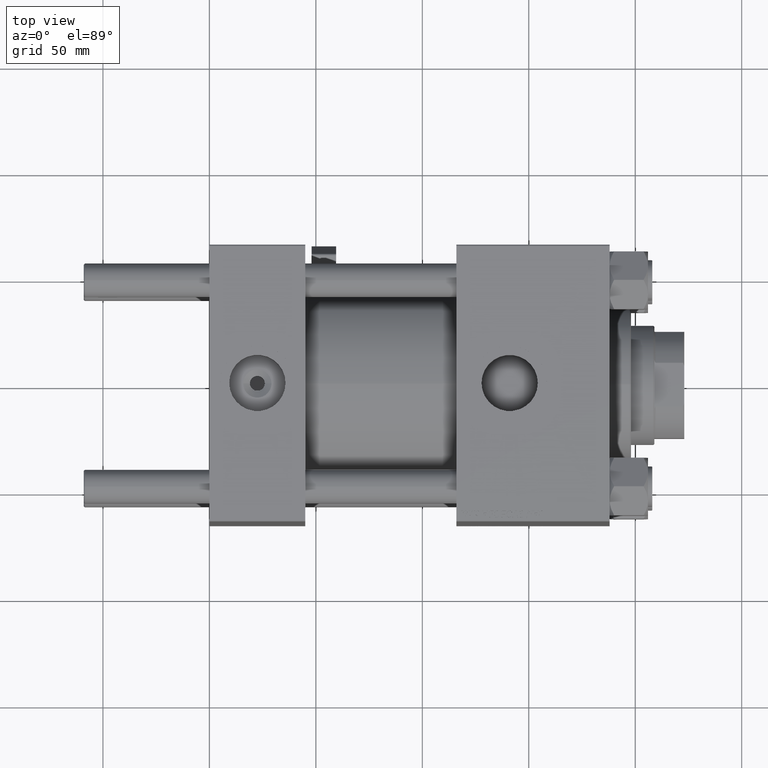
[diagram: clean part render]
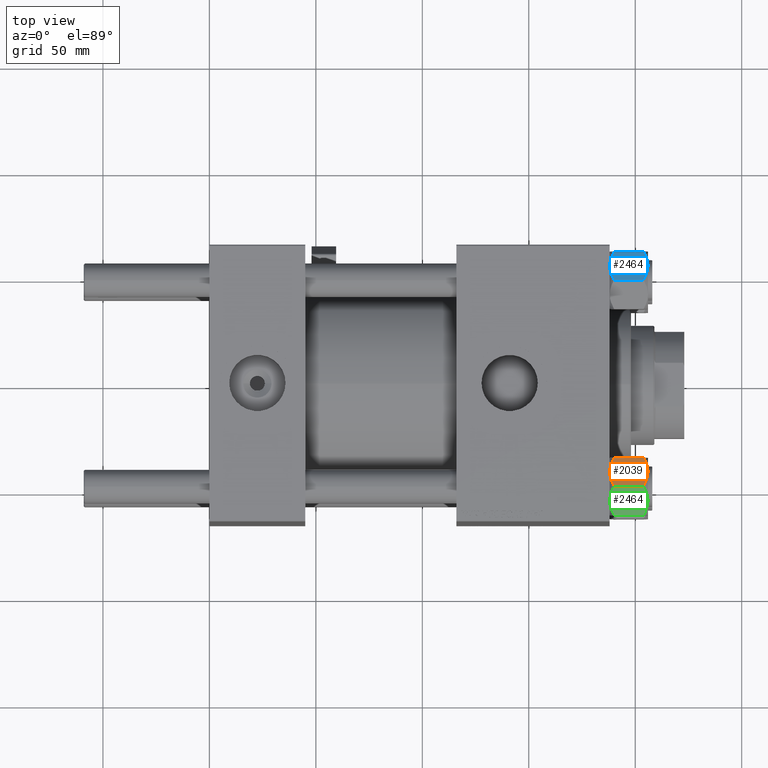
[diagram: same view with three faces highlighted in distinct colors, each labeled with its STEP entity id]
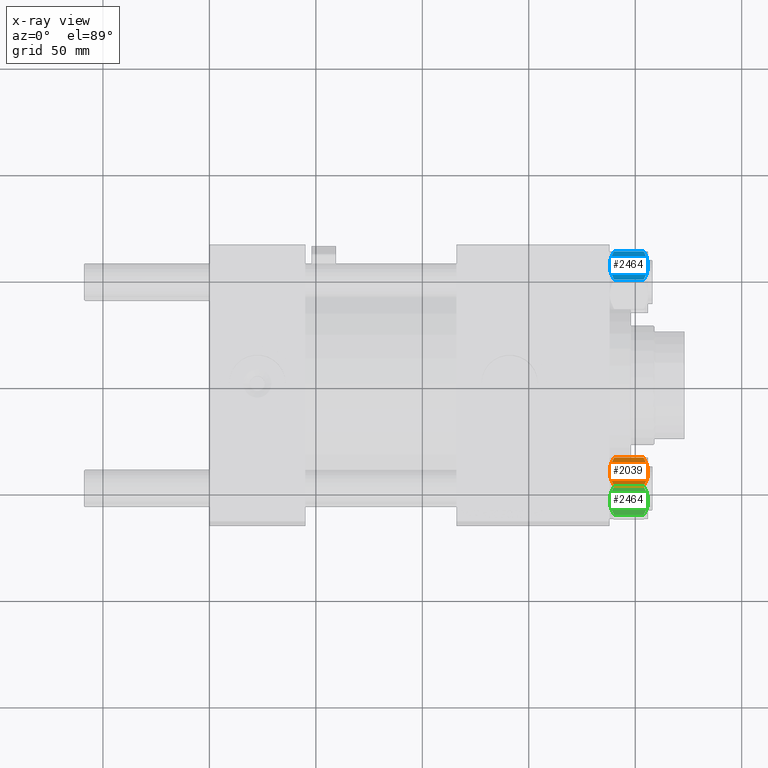
[diagram: x-ray of the same camera — body ghosted, the three highlighted faces saturated]
A machine part, top view with three faces highlighted in distinct colors.
The next image is the same camera in x-ray (body ghosted, the three faces saturated) — at least one of them is partly hidden behind the body in this view.
Their STEP definitions:

[orange] entity #2039 — the highlighted planar face has unit normal (-0, -0.5, -0.866).
#600 = B_SPLINE_CURVE_WITH_KNOTS ( 'NONE', 3,
 ( #18380, #14409, #35099, #10430, #14931, #43334, #51259, #31114 ),
 .UNSPECIFIED., .F., .F.,
 ( 4, 2, 2, 4 ),
 ( 4.472842642033888912E-07, 0.003945636373369316996, 0.005918230917921872211, 0.007890825462474429161 ),
 .UNSPECIFIED. ) ;
#610 = EDGE_LOOP ( 'NONE', ( #34173, #19557, #16539, #37521, #38615, #34026, #46822, #30363, #36338, #23504 ) ) ;
#656 = EDGE_CURVE ( 'NONE', #17169, #46879, #48027, .T. ) ;
#879 = CARTESIAN_POINT ( 'NONE',  ( 14.30591678195075822, 2.276058899034911320, -17.05261278537718539 ) ) ;
#2039 = ADVANCED_FACE ( 'NONE', ( #46954 ), #26789, .F. ) ;
#2352 = CARTESIAN_POINT ( 'NONE',  ( 11.05297796109638142, 7.910314210667887203, -1.616138863361205047E-15 ) ) ;
#2909 = DIRECTION ( 'NONE',  ( -0.8660254037844383745, -0.5000000000000004441, 0.000000000000000000 ) ) ;
#3208 = CARTESIAN_POINT ( 'NONE',  ( 7.809999999999995168, 13.52731680711294082, -16.00000000000000000 ) ) ;
#4066 = CARTESIAN_POINT ( 'NONE',  ( 11.04378428799594580, 7.926238119586004771, -17.94910618364698252 ) ) ;
#4203 = DIRECTION ( 'NONE',  ( 0.5000000000000004441, -0.8660254037844383745, 0.000000000000000000 ) ) ;
#5157 = VECTOR ( 'NONE', #19400, 1000.000000000000114 ) ;
#5831 = VECTOR ( 'NONE', #42952, 1000.000000000000114 ) ;
#5935 = EDGE_CURVE ( 'NONE', #16852, #42766, #26755, .T. ) ;
#5984 = EDGE_CURVE ( 'NONE', #39255, #40384, #43949, .T. ) ;
#6017 = VERTEX_POINT ( 'NONE', #34179 ) ;
#7444 = VECTOR ( 'NONE', #4203, 1000.000000000000114 ) ;
#7813 = CARTESIAN_POINT ( 'NONE',  ( 15.62000000000000455, 5.009671660077301770E-15, -18.00000000000000000 ) ) ;
#8564 = CARTESIAN_POINT ( 'NONE',  ( 11.38181071908714337, 7.340759166634874155, -17.99999999999999289 ) ) ;
#8810 = CARTESIAN_POINT ( 'NONE',  ( 7.903528262322678799, 13.36532110482642466, -16.00000000000000000 ) ) ;
#10430 = CARTESIAN_POINT ( 'NONE',  ( 13.36540581434586983, 3.905071680002333512, -0.3836066851120609744 ) ) ;
#10909 = EDGE_CURVE ( 'NONE', #34318, #6017, #51744, .T. ) ;
#11838 = VERTEX_POINT ( 'NONE', #14993 ) ;
#12217 = DIRECTION ( 'NONE',  ( -0.5000000000000004441, 0.8660254037844383745, 0.000000000000000000 ) ) ;
#12282 = CARTESIAN_POINT ( 'NONE',  ( 8.502393313253756801, 12.32805640973648131, -16.58801072835992585 ) ) ;
#12987 = LINE ( 'NONE', #32900, #22759 ) ;
#13071 = CARTESIAN_POINT ( 'NONE',  ( 15.52647173767732447, 0.1619957022865230467, -16.00000000000000000 ) ) ;
#14123 = CARTESIAN_POINT ( 'NONE',  ( 13.02784502466562166, 4.489744118371596038, -17.80281335400754017 ) ) ;
#14409 = CARTESIAN_POINT ( 'NONE',  ( 14.92760668674625180, 1.199260397376467502, -1.411989271640067489 ) ) ;
#14822 = CARTESIAN_POINT ( 'NONE',  ( 9.439480280627261521, 10.70497417113492489, -0.7317196846281144307 ) ) ;
#14931 = CARTESIAN_POINT ( 'NONE',  ( 13.04337073483127973, 4.462852799541093596, -0.2430846701013001376 ) ) ;
#14993 = CARTESIAN_POINT ( 'NONE',  ( 7.809999999999994280, 13.52731680711294082, -1.999999999999998224 ) ) ;
#15702 = CARTESIAN_POINT ( 'NONE',  ( 7.903528262322678799, 13.36532110482642466, -16.00000000000000000 ) ) ;
#16539 = ORIENTED_EDGE ( 'NONE', *, *, #22896, .F. ) ;
#16643 = CARTESIAN_POINT ( 'NONE',  ( 7.809999999999995168, 13.52731680711294082, -16.00000000000000000 ) ) ;
#16852 = VERTEX_POINT ( 'NONE', #48645 ) ;
#17071 = CARTESIAN_POINT ( 'NONE',  ( 14.92394044919337581, 1.205610507090648209, -16.56553707812498999 ) ) ;
#17116 = EDGE_CURVE ( 'NONE', #42766, #39255, #600, .T. ) ;
#17169 = VERTEX_POINT ( 'NONE', #15702 ) ;
#18001 = CARTESIAN_POINT ( 'NONE',  ( 7.809999999999995168, 13.52731680711294082, -1.999999999999998224 ) ) ;
#18380 = CARTESIAN_POINT ( 'NONE',  ( 15.52647173767732447, 0.1619957022865230467, -2.000000000000000000 ) ) ;
#18812 = CARTESIAN_POINT ( 'NONE',  ( 11.71499999999999808, 6.763658403556471299, 0.000000000000000000 ) ) ;
#19400 = DIRECTION ( 'NONE',  ( 0.5000000000000004441, -0.8660254037844383745, 0.000000000000000000 ) ) ;
#19557 = ORIENTED_EDGE ( 'NONE', *, *, #47670, .T. ) ;
#20306 = B_SPLINE_CURVE_WITH_KNOTS ( 'NONE', 3,
 ( #45974, #50451, #14123, #25282, #879, #17071, #41477, #13071 ),
 .UNSPECIFIED., .F., .F.,
 ( 4, 2, 2, 4 ),
 ( 0.007890825462474411814, 0.01181022244528551722, 0.01376992093669107166, 0.01572961942809662783 ),
 .UNSPECIFIED. ) ;
#21583 = CARTESIAN_POINT ( 'NONE',  ( 11.71499999999999808, 6.763658403556471299, -18.00000000000000000 ) ) ;
#22164 = EDGE_CURVE ( 'NONE', #28452, #17169, #32832, .T. ) ;
#22510 = CARTESIAN_POINT ( 'NONE',  ( 7.903528262322678799, 13.36532110482642466, -2.000000000000000000 ) ) ;
#22759 = VECTOR ( 'NONE', #12217, 1000.000000000000114 ) ;
#22896 = EDGE_CURVE ( 'NONE', #40384, #11838, #12987, .T. ) ;
#23504 = ORIENTED_EDGE ( 'NONE', *, *, #656, .F. ) ;
#24009 = DIRECTION ( 'NONE',  ( -0.000000000000000000, -0.000000000000000000, 1.000000000000000000 ) ) ;
#24799 = CARTESIAN_POINT ( 'NONE',  ( 7.809999999999995168, 13.52731680711294082, -18.00000000000000000 ) ) ;
#25040 = LINE ( 'NONE', #24799, #43011 ) ;
#25282 = CARTESIAN_POINT ( 'NONE',  ( 13.99051971937273819, 2.822342635978020819, -17.26828031537188934 ) ) ;
#26755 = LINE ( 'NONE', #18001, #5831 ) ;
#26789 = PLANE ( 'NONE',  #29389 ) ;
#27062 = DIRECTION ( 'NONE',  ( 0.5000000000000004441, -0.8660254037844383745, 0.000000000000000000 ) ) ;
#28452 = VERTEX_POINT ( 'NONE', #34725 ) ;
#28748 = LINE ( 'NONE', #7813, #37416 ) ;
#29389 = AXIS2_PLACEMENT_3D ( 'NONE', #35028, #2909, #27062 ) ;
#29479 = CARTESIAN_POINT ( 'NONE',  ( 11.71499999999999808, 6.763658403556471299, 0.000000000000000000 ) ) ;
#30363 = ORIENTED_EDGE ( 'NONE', *, *, #10909, .F. ) ;
#30740 = CARTESIAN_POINT ( 'NONE',  ( 9.124083218049234389, 11.25125790807803483, -0.9473872146228138336 ) ) ;
#31114 = CARTESIAN_POINT ( 'NONE',  ( 11.71499999999999808, 6.763658403556471299, 0.000000000000000000 ) ) ;
#32126 = CARTESIAN_POINT ( 'NONE',  ( 15.52647173767732447, 0.1619957022865230467, -16.00000000000000000 ) ) ;
#32197 = CARTESIAN_POINT ( 'NONE',  ( 10.38662926516871998, 9.064464007571849891, -17.75691532989869614 ) ) ;
#32832 = LINE ( 'NONE', #16643, #7444 ) ;
#32900 = CARTESIAN_POINT ( 'NONE',  ( 7.809999999999995168, 13.52731680711294082, -1.999999999999998224 ) ) ;
#34026 = ORIENTED_EDGE ( 'NONE', *, *, #5935, .F. ) ;
#34173 = ORIENTED_EDGE ( 'NONE', *, *, #22164, .F. ) ;
#34179 = CARTESIAN_POINT ( 'NONE',  ( 15.62000000000000455, 5.009671660077301770E-15, -16.00000000000000000 ) ) ;
#34318 = VERTEX_POINT ( 'NONE', #32126 ) ;
#34725 = CARTESIAN_POINT ( 'NONE',  ( 7.809999999999994280, 13.52731680711294082, -16.00000000000000000 ) ) ;
#34996 = CARTESIAN_POINT ( 'NONE',  ( 10.40215497533437450, 9.037572688741349225, -0.1971866459924571102 ) ) ;
#35028 = CARTESIAN_POINT ( 'NONE',  ( 7.809999999999995168, 13.52731680711294082, -18.00000000000000000 ) ) ;
#35063 = EDGE_CURVE ( 'NONE', #6017, #16852, #28748, .T. ) ;
#35099 = CARTESIAN_POINT ( 'NONE',  ( 14.31545111198821196, 2.259544954993908394, -0.9142282604026947812 ) ) ;
#35231 = EDGE_CURVE ( 'NONE', #46879, #34318, #20306, .T. ) ;
#36245 = CARTESIAN_POINT ( 'NONE',  ( 7.903528262322678799, 13.36532110482642466, -2.000000000000000000 ) ) ;
#36338 = ORIENTED_EDGE ( 'NONE', *, *, #35231, .F. ) ;
#37416 = VECTOR ( 'NONE', #24009, 1000.000000000000000 ) ;
#37521 = ORIENTED_EDGE ( 'NONE', *, *, #5984, .F. ) ;
#38615 = ORIENTED_EDGE ( 'NONE', *, *, #17116, .F. ) ;
#39255 = VERTEX_POINT ( 'NONE', #29479 ) ;
#39931 = CARTESIAN_POINT ( 'NONE',  ( 15.52647173767732447, 0.1619957022865230467, -2.000000000000000000 ) ) ;
#40384 = VERTEX_POINT ( 'NONE', #36245 ) ;
#41477 = CARTESIAN_POINT ( 'NONE',  ( 15.22736220980735489, 0.6800686015852402955, -16.29368822085855228 ) ) ;
#41770 = DIRECTION ( 'NONE',  ( -0.000000000000000000, -0.000000000000000000, 1.000000000000000000 ) ) ;
#42152 = CARTESIAN_POINT ( 'NONE',  ( 8.202637790192643052, 12.84724820552770197, -1.706311779141444163 ) ) ;
#42766 = VERTEX_POINT ( 'NONE', #39931 ) ;
#42952 = DIRECTION ( 'NONE',  ( -0.5000000000000004441, 0.8660254037844383745, 0.000000000000000000 ) ) ;
#43011 = VECTOR ( 'NONE', #41770, 1000.000000000000000 ) ;
#43334 = CARTESIAN_POINT ( 'NONE',  ( 12.38621571200405391, 5.601078687526936939, -0.05089381635301767209 ) ) ;
#43949 = B_SPLINE_CURVE_WITH_KNOTS ( 'NONE', 3,
 ( #18812, #2352, #34996, #14822, #30740, #46659, #42152, #22510 ),
 .UNSPECIFIED., .F., .F.,
 ( 4, 2, 2, 4 ),
 ( 0.007890825462474429161, 0.01181022244528553977, 0.01376992093669109421, 0.01572961942809664865 ),
 .UNSPECIFIED. ) ;
#44410 = CARTESIAN_POINT ( 'NONE',  ( 11.71499999999999808, 6.763658403556471299, -18.00000000000000000 ) ) ;
#44919 = CARTESIAN_POINT ( 'NONE',  ( 9.114548888011784200, 11.26777185211903642, -17.08577173959729834 ) ) ;
#45974 = CARTESIAN_POINT ( 'NONE',  ( 11.71499999999999808, 6.763658403556471299, -18.00000000000000000 ) ) ;
#46659 = CARTESIAN_POINT ( 'NONE',  ( 8.506059550806616798, 12.32170630002229927, -1.434462921875002239 ) ) ;
#46822 = ORIENTED_EDGE ( 'NONE', *, *, #35063, .F. ) ;
#46879 = VERTEX_POINT ( 'NONE', #21583 ) ;
#46954 = FACE_OUTER_BOUND ( 'NONE', #610, .T. ) ;
#47670 = EDGE_CURVE ( 'NONE', #28452, #11838, #25040, .T. ) ;
#48027 = B_SPLINE_CURVE_WITH_KNOTS ( 'NONE', 3,
 ( #8810, #12282, #44919, #49393, #32197, #4066, #8564, #44410 ),
 .UNSPECIFIED., .F., .F.,
 ( 4, 2, 2, 4 ),
 ( 4.472842641837737786E-07, 0.003945636373369299649, 0.005918230917921855731, 0.007890825462474411814 ),
 .UNSPECIFIED. ) ;
#48645 = CARTESIAN_POINT ( 'NONE',  ( 15.62000000000000455, 5.009671660077301770E-15, -1.999999999999998224 ) ) ;
#49393 = CARTESIAN_POINT ( 'NONE',  ( 10.06459418565412456, 9.622245127110609531, -17.61639331488793303 ) ) ;
#50451 = CARTESIAN_POINT ( 'NONE',  ( 12.37702203890362362, 5.617002596445060725, -17.99999999999999645 ) ) ;
#51259 = CARTESIAN_POINT ( 'NONE',  ( 12.04818928091285635, 6.186557640478070219, -1.789310043688750938E-15 ) ) ;
#51744 = LINE ( 'NONE', #3208, #5157 ) ;

[blue] entity #2464 — the highlighted planar face has unit normal (-0, -0.5, -0.866).
#2464 = ADVANCED_FACE ( 'NONE', ( #19813 ), #52416, .F. ) ;
#2522 = ORIENTED_EDGE ( 'NONE', *, *, #36769, .F. ) ;
#2688 = CARTESIAN_POINT ( 'NONE',  ( -2.644243758052992721, 13.52731680711293549, -0.2408281198024026237 ) ) ;
#3845 = CARTESIAN_POINT ( 'NONE',  ( -4.506943796211480446E-15, 13.52731680711293905, -18.00000000000000000 ) ) ;
#3924 = CARTESIAN_POINT ( 'NONE',  ( 6.427364677720460051, 13.52731680711294082, -1.438506937155139553 ) ) ;
#4380 = LINE ( 'NONE', #36216, #5004 ) ;
#5004 = VECTOR ( 'NONE', #31972, 1000.000000000000000 ) ;
#5449 = CARTESIAN_POINT ( 'NONE',  ( -7.810000000000002274, 13.52731680711293549, -18.00000000000000000 ) ) ;
#6056 = CARTESIAN_POINT ( 'NONE',  ( 3.287826776903146619, 13.52731680711294082, -17.61954155462465366 ) ) ;
#6343 = EDGE_CURVE ( 'NONE', #38995, #50692, #4380, .T. ) ;
#7431 = CARTESIAN_POINT ( 'NONE',  ( -0.3330234424833884432, 13.52731680711294082, -4.372948762358202269E-15 ) ) ;
#7479 = ORIENTED_EDGE ( 'NONE', *, *, #44741, .F. ) ;
#7971 = EDGE_CURVE ( 'NONE', #37179, #44235, #39894, .T. ) ;
#8222 = VERTEX_POINT ( 'NONE', #52399 ) ;
#8432 = CARTESIAN_POINT ( 'NONE',  ( 2.638177715023098724, 13.52731680711293905, -0.2001540676698886079 ) ) ;
#8517 = EDGE_LOOP ( 'NONE', ( #9655, #37433, #19422, #7479, #39699, #25266, #16940, #24463, #48665, #2522 ) ) ;
#9171 = DIRECTION ( 'NONE',  ( -0.000000000000000000, -0.000000000000000000, 1.000000000000000000 ) ) ;
#9655 = ORIENTED_EDGE ( 'NONE', *, *, #6343, .F. ) ;
#10158 = CARTESIAN_POINT ( 'NONE',  ( -7.810000000000002274, 13.52731680711293549, -1.999999999999998224 ) ) ;
#10568 = CARTESIAN_POINT ( 'NONE',  ( -4.506943796211480446E-15, 13.52731680711293905, -18.00000000000000000 ) ) ;
#10900 = CARTESIAN_POINT ( 'NONE',  ( -5.184073258379398474, 13.52731680711293372, -0.9481437906500842505 ) ) ;
#11838 = VERTEX_POINT ( 'NONE', #14993 ) ;
#12622 = DIRECTION ( 'NONE',  ( 3.331735229148797044E-16, -1.000000000000000000, 0.000000000000000000 ) ) ;
#13212 = CARTESIAN_POINT ( 'NONE',  ( -7.030888348548057998, 13.52731680711293727, -16.29066211644969897 ) ) ;
#14562 = CARTESIAN_POINT ( 'NONE',  ( -1.335584685993417065, 13.52731680711293549, -17.99999999999999289 ) ) ;
#14993 = CARTESIAN_POINT ( 'NONE',  ( 7.809999999999994280, 13.52731680711294082, -1.999999999999998224 ) ) ;
#15405 = CARTESIAN_POINT ( 'NONE',  ( -1.663410456966178064, 13.52731680711294082, -0.09804949135699474183 ) ) ;
#16094 = DIRECTION ( 'NONE',  ( 1.000000000000000000, 3.331735229148797044E-16, 0.000000000000000000 ) ) ;
#16940 = ORIENTED_EDGE ( 'NONE', *, *, #47670, .F. ) ;
#17073 = EDGE_CURVE ( 'NONE', #11838, #37179, #46503, .T. ) ;
#17610 = LINE ( 'NONE', #38037, #22639 ) ;
#17998 = CARTESIAN_POINT ( 'NONE',  ( 2.644243758052981175, 13.52731680711294260, -17.75917188019758797 ) ) ;
#18257 = CARTESIAN_POINT ( 'NONE',  ( 6.422751913021809145, 13.52731680711294260, -16.56349088907410660 ) ) ;
#18680 = DIRECTION ( 'NONE',  ( -1.000000000000000000, -3.331735229148797044E-16, 0.000000000000000000 ) ) ;
#19059 = CARTESIAN_POINT ( 'NONE',  ( 7.622943475354630571, 13.52731680711294082, -16.00000000000000000 ) ) ;
#19183 = CARTESIAN_POINT ( 'NONE',  ( -7.810000000000002274, 13.52731680711293549, -1.999999999999998224 ) ) ;
#19422 = ORIENTED_EDGE ( 'NONE', *, *, #20183, .F. ) ;
#19546 = EDGE_CURVE ( 'NONE', #32210, #28452, #48117, .T. ) ;
#19813 = FACE_OUTER_BOUND ( 'NONE', #8517, .T. ) ;
#20116 = CARTESIAN_POINT ( 'NONE',  ( 4.553769687922292420, 13.52731680711293905, -0.7327291995145180925 ) ) ;
#20183 = EDGE_CURVE ( 'NONE', #22701, #49143, #17610, .T. ) ;
#21174 = B_SPLINE_CURVE_WITH_KNOTS ( 'NONE', 3,
 ( #26560, #7431, #43788, #35054, #15405, #2688, #51209, #42750, #10900, #23354, #34788, #39550 ),
 .UNSPECIFIED., .F., .F.,
 ( 4, 2, 2, 2, 2, 4 ),
 ( 0.02774433486126545376, 0.02873404020403548878, 0.02972374554680552727, 0.03170315623234559732, 0.03368256691788567431, 0.03566197760342574435 ),
 .UNSPECIFIED. ) ;
#21981 = CARTESIAN_POINT ( 'NONE',  ( 1.333889873825125472, 13.52731680711293727, -17.93843358996559800 ) ) ;
#22250 = CARTESIAN_POINT ( 'NONE',  ( 5.184073258379390481, 13.52731680711294082, -17.05185620934991064 ) ) ;
#22268 = B_SPLINE_CURVE_WITH_KNOTS ( 'NONE', 3,
 ( #10568, #22784, #39240, #21981, #38976, #17998, #6056, #34438, #22250, #18257, #46377, #19059 ),
 .UNSPECIFIED., .F., .F.,
 ( 4, 2, 2, 2, 2, 4 ),
 ( 0.02774433486126545029, 0.02873404020403548531, 0.02972374554680552380, 0.03170315623234559732, 0.03368256691788566737, 0.03566197760342574435 ),
 .UNSPECIFIED. ) ;
#22639 = VECTOR ( 'NONE', #18680, 1000.000000000000000 ) ;
#22701 = VERTEX_POINT ( 'NONE', #42771 ) ;
#22784 = CARTESIAN_POINT ( 'NONE',  ( 0.3330234424833778406, 13.52731680711293905, -17.99999999999999645 ) ) ;
#22900 = DIRECTION ( 'NONE',  ( -1.000000000000000000, -3.331735229148797044E-16, 0.000000000000000000 ) ) ;
#23068 = CARTESIAN_POINT ( 'NONE',  ( -7.622943475354639453, 13.52731680711293727, -16.00000000000000000 ) ) ;
#23354 = CARTESIAN_POINT ( 'NONE',  ( -6.422751913021819803, 13.52731680711293905, -1.436509110925896504 ) ) ;
#24463 = ORIENTED_EDGE ( 'NONE', *, *, #19546, .F. ) ;
#24799 = CARTESIAN_POINT ( 'NONE',  ( 7.809999999999995168, 13.52731680711294082, -18.00000000000000000 ) ) ;
#25040 = LINE ( 'NONE', #24799, #43011 ) ;
#25114 = CARTESIAN_POINT ( 'NONE',  ( 7.030888348548049116, 13.52731680711294260, -1.709337883550296810 ) ) ;
#25266 = ORIENTED_EDGE ( 'NONE', *, *, #17073, .F. ) ;
#25428 = CARTESIAN_POINT ( 'NONE',  ( -5.189513245496327976, 13.52731680711293905, -17.04988915682674389 ) ) ;
#26560 = CARTESIAN_POINT ( 'NONE',  ( -4.506943796211480446E-15, 13.52731680711293905, 0.000000000000000000 ) ) ;
#28329 = CARTESIAN_POINT ( 'NONE',  ( 5.189513245496318206, 13.52731680711294260, -0.9501108431732598891 ) ) ;
#28452 = VERTEX_POINT ( 'NONE', #34725 ) ;
#28667 = B_SPLINE_CURVE_WITH_KNOTS ( 'NONE', 3,
 ( #49552, #13212, #45595, #25428, #37629, #34440, #14562, #3845 ),
 .UNSPECIFIED., .F., .F.,
 ( 4, 2, 2, 4 ),
 ( 0.01980594295952729442, 0.02179054093496183425, 0.02377513891039637409, 0.02774433486126545029 ),
 .UNSPECIFIED. ) ;
#28732 = DIRECTION ( 'NONE',  ( 1.000000000000000000, 3.331735229148797044E-16, 0.000000000000000000 ) ) ;
#30317 = VECTOR ( 'NONE', #28732, 1000.000000000000000 ) ;
#31646 = CARTESIAN_POINT ( 'NONE',  ( 7.622943475354630571, 13.52731680711294082, -2.000000000000000000 ) ) ;
#31972 = DIRECTION ( 'NONE',  ( 1.000000000000000000, 3.331735229148797044E-16, 0.000000000000000000 ) ) ;
#32210 = VERTEX_POINT ( 'NONE', #42564 ) ;
#33261 = CARTESIAN_POINT ( 'NONE',  ( -7.810000000000002274, 13.52731680711293549, -16.00000000000000000 ) ) ;
#34438 = CARTESIAN_POINT ( 'NONE',  ( 4.557734399832405359, 13.52731680711293905, -17.26585298258848411 ) ) ;
#34440 = CARTESIAN_POINT ( 'NONE',  ( -2.638177715023108494, 13.52731680711293549, -17.79984593233010770 ) ) ;
#34725 = CARTESIAN_POINT ( 'NONE',  ( 7.809999999999994280, 13.52731680711294082, -16.00000000000000000 ) ) ;
#34788 = CARTESIAN_POINT ( 'NONE',  ( -7.030203932307578896, 13.52731680711293727, -1.709001877891394239 ) ) ;
#35054 = CARTESIAN_POINT ( 'NONE',  ( -1.333889873825136130, 13.52731680711293549, -0.06156641003439738274 ) ) ;
#36216 = CARTESIAN_POINT ( 'NONE',  ( -7.810000000000002274, 13.52731680711293549, -16.00000000000000000 ) ) ;
#36701 = VECTOR ( 'NONE', #9171, 1000.000000000000000 ) ;
#36769 = EDGE_CURVE ( 'NONE', #50692, #8222, #28667, .T. ) ;
#37065 = CARTESIAN_POINT ( 'NONE',  ( -4.506943796211480446E-15, 13.52731680711293905, 0.000000000000000000 ) ) ;
#37179 = VERTEX_POINT ( 'NONE', #31646 ) ;
#37303 = LINE ( 'NONE', #5449, #36701 ) ;
#37433 = ORIENTED_EDGE ( 'NONE', *, *, #38637, .T. ) ;
#37629 = CARTESIAN_POINT ( 'NONE',  ( -4.553769687922305742, 13.52731680711293727, -17.26727080048547691 ) ) ;
#38037 = CARTESIAN_POINT ( 'NONE',  ( -7.810000000000002274, 13.52731680711293549, -1.999999999999998224 ) ) ;
#38637 = EDGE_CURVE ( 'NONE', #38995, #49143, #37303, .T. ) ;
#38976 = CARTESIAN_POINT ( 'NONE',  ( 1.663410456966166295, 13.52731680711293905, -17.90195050864300086 ) ) ;
#38995 = VERTEX_POINT ( 'NONE', #33261 ) ;
#39172 = CARTESIAN_POINT ( 'NONE',  ( -4.506943796211480446E-15, 13.52731680711293905, 0.000000000000000000 ) ) ;
#39240 = CARTESIAN_POINT ( 'NONE',  ( 0.6693083573771140271, 13.52731680711293905, -17.98750666918891739 ) ) ;
#39550 = CARTESIAN_POINT ( 'NONE',  ( -7.622943475354639453, 13.52731680711293727, -2.000000000000000000 ) ) ;
#39699 = ORIENTED_EDGE ( 'NONE', *, *, #7971, .F. ) ;
#39894 = B_SPLINE_CURVE_WITH_KNOTS ( 'NONE', 3,
 ( #44783, #25114, #3924, #28329, #20116, #8432, #44525, #37065 ),
 .UNSPECIFIED., .F., .F.,
 ( 4, 2, 2, 4 ),
 ( 0.01980594295952729789, 0.02179054093496183772, 0.02377513891039637756, 0.02774433486126545376 ),
 .UNSPECIFIED. ) ;
#40254 = CARTESIAN_POINT ( 'NONE',  ( -7.810000000000002274, 13.52731680711293549, -18.00000000000000000 ) ) ;
#41770 = DIRECTION ( 'NONE',  ( -0.000000000000000000, -0.000000000000000000, 1.000000000000000000 ) ) ;
#42564 = CARTESIAN_POINT ( 'NONE',  ( 7.622943475354630571, 13.52731680711294082, -16.00000000000000000 ) ) ;
#42750 = CARTESIAN_POINT ( 'NONE',  ( -4.557734399832410688, 13.52731680711293549, -0.7341470174115168890 ) ) ;
#42771 = CARTESIAN_POINT ( 'NONE',  ( -7.622943475354639453, 13.52731680711293727, -2.000000000000000000 ) ) ;
#42991 = VECTOR ( 'NONE', #22900, 1000.000000000000000 ) ;
#43011 = VECTOR ( 'NONE', #41770, 1000.000000000000000 ) ;
#43788 = CARTESIAN_POINT ( 'NONE',  ( -0.6693083573771245742, 13.52731680711293727, -0.01249333081108506931 ) ) ;
#44235 = VERTEX_POINT ( 'NONE', #39172 ) ;
#44525 = CARTESIAN_POINT ( 'NONE',  ( 1.335584685993407517, 13.52731680711293905, -4.214835945537398487E-15 ) ) ;
#44741 = EDGE_CURVE ( 'NONE', #44235, #22701, #21174, .T. ) ;
#44783 = CARTESIAN_POINT ( 'NONE',  ( 7.622943475354630571, 13.52731680711294082, -2.000000000000000000 ) ) ;
#45526 = AXIS2_PLACEMENT_3D ( 'NONE', #40254, #12622, #16094 ) ;
#45595 = CARTESIAN_POINT ( 'NONE',  ( -6.427364677720469821, 13.52731680711293549, -16.56149306284486400 ) ) ;
#46377 = CARTESIAN_POINT ( 'NONE',  ( 7.030203932307570902, 13.52731680711294260, -16.29099812210859710 ) ) ;
#46503 = LINE ( 'NONE', #10158, #42991 ) ;
#47670 = EDGE_CURVE ( 'NONE', #28452, #11838, #25040, .T. ) ;
#48117 = LINE ( 'NONE', #51825, #30317 ) ;
#48454 = EDGE_CURVE ( 'NONE', #8222, #32210, #22268, .T. ) ;
#48665 = ORIENTED_EDGE ( 'NONE', *, *, #48454, .F. ) ;
#49143 = VERTEX_POINT ( 'NONE', #19183 ) ;
#49552 = CARTESIAN_POINT ( 'NONE',  ( -7.622943475354639453, 13.52731680711293727, -16.00000000000000000 ) ) ;
#50692 = VERTEX_POINT ( 'NONE', #23068 ) ;
#51209 = CARTESIAN_POINT ( 'NONE',  ( -3.287826776903154613, 13.52731680711293549, -0.3804584453753406814 ) ) ;
#51825 = CARTESIAN_POINT ( 'NONE',  ( -7.810000000000002274, 13.52731680711293549, -16.00000000000000000 ) ) ;
#52399 = CARTESIAN_POINT ( 'NONE',  ( -4.506943796211480446E-15, 13.52731680711293905, -18.00000000000000000 ) ) ;
#52416 = PLANE ( 'NONE',  #45526 ) ;

[green] entity #2464 — the highlighted planar face has unit normal (-0, 0.5, -0.866).
#2464 = ADVANCED_FACE ( 'NONE', ( #19813 ), #52416, .F. ) ;
#2522 = ORIENTED_EDGE ( 'NONE', *, *, #36769, .F. ) ;
#2688 = CARTESIAN_POINT ( 'NONE',  ( -2.644243758052992721, 13.52731680711293549, -0.2408281198024026237 ) ) ;
#3845 = CARTESIAN_POINT ( 'NONE',  ( -4.506943796211480446E-15, 13.52731680711293905, -18.00000000000000000 ) ) ;
#3924 = CARTESIAN_POINT ( 'NONE',  ( 6.427364677720460051, 13.52731680711294082, -1.438506937155139553 ) ) ;
#4380 = LINE ( 'NONE', #36216, #5004 ) ;
#5004 = VECTOR ( 'NONE', #31972, 1000.000000000000000 ) ;
#5449 = CARTESIAN_POINT ( 'NONE',  ( -7.810000000000002274, 13.52731680711293549, -18.00000000000000000 ) ) ;
#6056 = CARTESIAN_POINT ( 'NONE',  ( 3.287826776903146619, 13.52731680711294082, -17.61954155462465366 ) ) ;
#6343 = EDGE_CURVE ( 'NONE', #38995, #50692, #4380, .T. ) ;
#7431 = CARTESIAN_POINT ( 'NONE',  ( -0.3330234424833884432, 13.52731680711294082, -4.372948762358202269E-15 ) ) ;
#7479 = ORIENTED_EDGE ( 'NONE', *, *, #44741, .F. ) ;
#7971 = EDGE_CURVE ( 'NONE', #37179, #44235, #39894, .T. ) ;
#8222 = VERTEX_POINT ( 'NONE', #52399 ) ;
#8432 = CARTESIAN_POINT ( 'NONE',  ( 2.638177715023098724, 13.52731680711293905, -0.2001540676698886079 ) ) ;
#8517 = EDGE_LOOP ( 'NONE', ( #9655, #37433, #19422, #7479, #39699, #25266, #16940, #24463, #48665, #2522 ) ) ;
#9171 = DIRECTION ( 'NONE',  ( -0.000000000000000000, -0.000000000000000000, 1.000000000000000000 ) ) ;
#9655 = ORIENTED_EDGE ( 'NONE', *, *, #6343, .F. ) ;
#10158 = CARTESIAN_POINT ( 'NONE',  ( -7.810000000000002274, 13.52731680711293549, -1.999999999999998224 ) ) ;
#10568 = CARTESIAN_POINT ( 'NONE',  ( -4.506943796211480446E-15, 13.52731680711293905, -18.00000000000000000 ) ) ;
#10900 = CARTESIAN_POINT ( 'NONE',  ( -5.184073258379398474, 13.52731680711293372, -0.9481437906500842505 ) ) ;
#11838 = VERTEX_POINT ( 'NONE', #14993 ) ;
#12622 = DIRECTION ( 'NONE',  ( 3.331735229148797044E-16, -1.000000000000000000, 0.000000000000000000 ) ) ;
#13212 = CARTESIAN_POINT ( 'NONE',  ( -7.030888348548057998, 13.52731680711293727, -16.29066211644969897 ) ) ;
#14562 = CARTESIAN_POINT ( 'NONE',  ( -1.335584685993417065, 13.52731680711293549, -17.99999999999999289 ) ) ;
#14993 = CARTESIAN_POINT ( 'NONE',  ( 7.809999999999994280, 13.52731680711294082, -1.999999999999998224 ) ) ;
#15405 = CARTESIAN_POINT ( 'NONE',  ( -1.663410456966178064, 13.52731680711294082, -0.09804949135699474183 ) ) ;
#16094 = DIRECTION ( 'NONE',  ( 1.000000000000000000, 3.331735229148797044E-16, 0.000000000000000000 ) ) ;
#16940 = ORIENTED_EDGE ( 'NONE', *, *, #47670, .F. ) ;
#17073 = EDGE_CURVE ( 'NONE', #11838, #37179, #46503, .T. ) ;
#17610 = LINE ( 'NONE', #38037, #22639 ) ;
#17998 = CARTESIAN_POINT ( 'NONE',  ( 2.644243758052981175, 13.52731680711294260, -17.75917188019758797 ) ) ;
#18257 = CARTESIAN_POINT ( 'NONE',  ( 6.422751913021809145, 13.52731680711294260, -16.56349088907410660 ) ) ;
#18680 = DIRECTION ( 'NONE',  ( -1.000000000000000000, -3.331735229148797044E-16, 0.000000000000000000 ) ) ;
#19059 = CARTESIAN_POINT ( 'NONE',  ( 7.622943475354630571, 13.52731680711294082, -16.00000000000000000 ) ) ;
#19183 = CARTESIAN_POINT ( 'NONE',  ( -7.810000000000002274, 13.52731680711293549, -1.999999999999998224 ) ) ;
#19422 = ORIENTED_EDGE ( 'NONE', *, *, #20183, .F. ) ;
#19546 = EDGE_CURVE ( 'NONE', #32210, #28452, #48117, .T. ) ;
#19813 = FACE_OUTER_BOUND ( 'NONE', #8517, .T. ) ;
#20116 = CARTESIAN_POINT ( 'NONE',  ( 4.553769687922292420, 13.52731680711293905, -0.7327291995145180925 ) ) ;
#20183 = EDGE_CURVE ( 'NONE', #22701, #49143, #17610, .T. ) ;
#21174 = B_SPLINE_CURVE_WITH_KNOTS ( 'NONE', 3,
 ( #26560, #7431, #43788, #35054, #15405, #2688, #51209, #42750, #10900, #23354, #34788, #39550 ),
 .UNSPECIFIED., .F., .F.,
 ( 4, 2, 2, 2, 2, 4 ),
 ( 0.02774433486126545376, 0.02873404020403548878, 0.02972374554680552727, 0.03170315623234559732, 0.03368256691788567431, 0.03566197760342574435 ),
 .UNSPECIFIED. ) ;
#21981 = CARTESIAN_POINT ( 'NONE',  ( 1.333889873825125472, 13.52731680711293727, -17.93843358996559800 ) ) ;
#22250 = CARTESIAN_POINT ( 'NONE',  ( 5.184073258379390481, 13.52731680711294082, -17.05185620934991064 ) ) ;
#22268 = B_SPLINE_CURVE_WITH_KNOTS ( 'NONE', 3,
 ( #10568, #22784, #39240, #21981, #38976, #17998, #6056, #34438, #22250, #18257, #46377, #19059 ),
 .UNSPECIFIED., .F., .F.,
 ( 4, 2, 2, 2, 2, 4 ),
 ( 0.02774433486126545029, 0.02873404020403548531, 0.02972374554680552380, 0.03170315623234559732, 0.03368256691788566737, 0.03566197760342574435 ),
 .UNSPECIFIED. ) ;
#22639 = VECTOR ( 'NONE', #18680, 1000.000000000000000 ) ;
#22701 = VERTEX_POINT ( 'NONE', #42771 ) ;
#22784 = CARTESIAN_POINT ( 'NONE',  ( 0.3330234424833778406, 13.52731680711293905, -17.99999999999999645 ) ) ;
#22900 = DIRECTION ( 'NONE',  ( -1.000000000000000000, -3.331735229148797044E-16, 0.000000000000000000 ) ) ;
#23068 = CARTESIAN_POINT ( 'NONE',  ( -7.622943475354639453, 13.52731680711293727, -16.00000000000000000 ) ) ;
#23354 = CARTESIAN_POINT ( 'NONE',  ( -6.422751913021819803, 13.52731680711293905, -1.436509110925896504 ) ) ;
#24463 = ORIENTED_EDGE ( 'NONE', *, *, #19546, .F. ) ;
#24799 = CARTESIAN_POINT ( 'NONE',  ( 7.809999999999995168, 13.52731680711294082, -18.00000000000000000 ) ) ;
#25040 = LINE ( 'NONE', #24799, #43011 ) ;
#25114 = CARTESIAN_POINT ( 'NONE',  ( 7.030888348548049116, 13.52731680711294260, -1.709337883550296810 ) ) ;
#25266 = ORIENTED_EDGE ( 'NONE', *, *, #17073, .F. ) ;
#25428 = CARTESIAN_POINT ( 'NONE',  ( -5.189513245496327976, 13.52731680711293905, -17.04988915682674389 ) ) ;
#26560 = CARTESIAN_POINT ( 'NONE',  ( -4.506943796211480446E-15, 13.52731680711293905, 0.000000000000000000 ) ) ;
#28329 = CARTESIAN_POINT ( 'NONE',  ( 5.189513245496318206, 13.52731680711294260, -0.9501108431732598891 ) ) ;
#28452 = VERTEX_POINT ( 'NONE', #34725 ) ;
#28667 = B_SPLINE_CURVE_WITH_KNOTS ( 'NONE', 3,
 ( #49552, #13212, #45595, #25428, #37629, #34440, #14562, #3845 ),
 .UNSPECIFIED., .F., .F.,
 ( 4, 2, 2, 4 ),
 ( 0.01980594295952729442, 0.02179054093496183425, 0.02377513891039637409, 0.02774433486126545029 ),
 .UNSPECIFIED. ) ;
#28732 = DIRECTION ( 'NONE',  ( 1.000000000000000000, 3.331735229148797044E-16, 0.000000000000000000 ) ) ;
#30317 = VECTOR ( 'NONE', #28732, 1000.000000000000000 ) ;
#31646 = CARTESIAN_POINT ( 'NONE',  ( 7.622943475354630571, 13.52731680711294082, -2.000000000000000000 ) ) ;
#31972 = DIRECTION ( 'NONE',  ( 1.000000000000000000, 3.331735229148797044E-16, 0.000000000000000000 ) ) ;
#32210 = VERTEX_POINT ( 'NONE', #42564 ) ;
#33261 = CARTESIAN_POINT ( 'NONE',  ( -7.810000000000002274, 13.52731680711293549, -16.00000000000000000 ) ) ;
#34438 = CARTESIAN_POINT ( 'NONE',  ( 4.557734399832405359, 13.52731680711293905, -17.26585298258848411 ) ) ;
#34440 = CARTESIAN_POINT ( 'NONE',  ( -2.638177715023108494, 13.52731680711293549, -17.79984593233010770 ) ) ;
#34725 = CARTESIAN_POINT ( 'NONE',  ( 7.809999999999994280, 13.52731680711294082, -16.00000000000000000 ) ) ;
#34788 = CARTESIAN_POINT ( 'NONE',  ( -7.030203932307578896, 13.52731680711293727, -1.709001877891394239 ) ) ;
#35054 = CARTESIAN_POINT ( 'NONE',  ( -1.333889873825136130, 13.52731680711293549, -0.06156641003439738274 ) ) ;
#36216 = CARTESIAN_POINT ( 'NONE',  ( -7.810000000000002274, 13.52731680711293549, -16.00000000000000000 ) ) ;
#36701 = VECTOR ( 'NONE', #9171, 1000.000000000000000 ) ;
#36769 = EDGE_CURVE ( 'NONE', #50692, #8222, #28667, .T. ) ;
#37065 = CARTESIAN_POINT ( 'NONE',  ( -4.506943796211480446E-15, 13.52731680711293905, 0.000000000000000000 ) ) ;
#37179 = VERTEX_POINT ( 'NONE', #31646 ) ;
#37303 = LINE ( 'NONE', #5449, #36701 ) ;
#37433 = ORIENTED_EDGE ( 'NONE', *, *, #38637, .T. ) ;
#37629 = CARTESIAN_POINT ( 'NONE',  ( -4.553769687922305742, 13.52731680711293727, -17.26727080048547691 ) ) ;
#38037 = CARTESIAN_POINT ( 'NONE',  ( -7.810000000000002274, 13.52731680711293549, -1.999999999999998224 ) ) ;
#38637 = EDGE_CURVE ( 'NONE', #38995, #49143, #37303, .T. ) ;
#38976 = CARTESIAN_POINT ( 'NONE',  ( 1.663410456966166295, 13.52731680711293905, -17.90195050864300086 ) ) ;
#38995 = VERTEX_POINT ( 'NONE', #33261 ) ;
#39172 = CARTESIAN_POINT ( 'NONE',  ( -4.506943796211480446E-15, 13.52731680711293905, 0.000000000000000000 ) ) ;
#39240 = CARTESIAN_POINT ( 'NONE',  ( 0.6693083573771140271, 13.52731680711293905, -17.98750666918891739 ) ) ;
#39550 = CARTESIAN_POINT ( 'NONE',  ( -7.622943475354639453, 13.52731680711293727, -2.000000000000000000 ) ) ;
#39699 = ORIENTED_EDGE ( 'NONE', *, *, #7971, .F. ) ;
#39894 = B_SPLINE_CURVE_WITH_KNOTS ( 'NONE', 3,
 ( #44783, #25114, #3924, #28329, #20116, #8432, #44525, #37065 ),
 .UNSPECIFIED., .F., .F.,
 ( 4, 2, 2, 4 ),
 ( 0.01980594295952729789, 0.02179054093496183772, 0.02377513891039637756, 0.02774433486126545376 ),
 .UNSPECIFIED. ) ;
#40254 = CARTESIAN_POINT ( 'NONE',  ( -7.810000000000002274, 13.52731680711293549, -18.00000000000000000 ) ) ;
#41770 = DIRECTION ( 'NONE',  ( -0.000000000000000000, -0.000000000000000000, 1.000000000000000000 ) ) ;
#42564 = CARTESIAN_POINT ( 'NONE',  ( 7.622943475354630571, 13.52731680711294082, -16.00000000000000000 ) ) ;
#42750 = CARTESIAN_POINT ( 'NONE',  ( -4.557734399832410688, 13.52731680711293549, -0.7341470174115168890 ) ) ;
#42771 = CARTESIAN_POINT ( 'NONE',  ( -7.622943475354639453, 13.52731680711293727, -2.000000000000000000 ) ) ;
#42991 = VECTOR ( 'NONE', #22900, 1000.000000000000000 ) ;
#43011 = VECTOR ( 'NONE', #41770, 1000.000000000000000 ) ;
#43788 = CARTESIAN_POINT ( 'NONE',  ( -0.6693083573771245742, 13.52731680711293727, -0.01249333081108506931 ) ) ;
#44235 = VERTEX_POINT ( 'NONE', #39172 ) ;
#44525 = CARTESIAN_POINT ( 'NONE',  ( 1.335584685993407517, 13.52731680711293905, -4.214835945537398487E-15 ) ) ;
#44741 = EDGE_CURVE ( 'NONE', #44235, #22701, #21174, .T. ) ;
#44783 = CARTESIAN_POINT ( 'NONE',  ( 7.622943475354630571, 13.52731680711294082, -2.000000000000000000 ) ) ;
#45526 = AXIS2_PLACEMENT_3D ( 'NONE', #40254, #12622, #16094 ) ;
#45595 = CARTESIAN_POINT ( 'NONE',  ( -6.427364677720469821, 13.52731680711293549, -16.56149306284486400 ) ) ;
#46377 = CARTESIAN_POINT ( 'NONE',  ( 7.030203932307570902, 13.52731680711294260, -16.29099812210859710 ) ) ;
#46503 = LINE ( 'NONE', #10158, #42991 ) ;
#47670 = EDGE_CURVE ( 'NONE', #28452, #11838, #25040, .T. ) ;
#48117 = LINE ( 'NONE', #51825, #30317 ) ;
#48454 = EDGE_CURVE ( 'NONE', #8222, #32210, #22268, .T. ) ;
#48665 = ORIENTED_EDGE ( 'NONE', *, *, #48454, .F. ) ;
#49143 = VERTEX_POINT ( 'NONE', #19183 ) ;
#49552 = CARTESIAN_POINT ( 'NONE',  ( -7.622943475354639453, 13.52731680711293727, -16.00000000000000000 ) ) ;
#50692 = VERTEX_POINT ( 'NONE', #23068 ) ;
#51209 = CARTESIAN_POINT ( 'NONE',  ( -3.287826776903154613, 13.52731680711293549, -0.3804584453753406814 ) ) ;
#51825 = CARTESIAN_POINT ( 'NONE',  ( -7.810000000000002274, 13.52731680711293549, -16.00000000000000000 ) ) ;
#52399 = CARTESIAN_POINT ( 'NONE',  ( -4.506943796211480446E-15, 13.52731680711293905, -18.00000000000000000 ) ) ;
#52416 = PLANE ( 'NONE',  #45526 ) ;